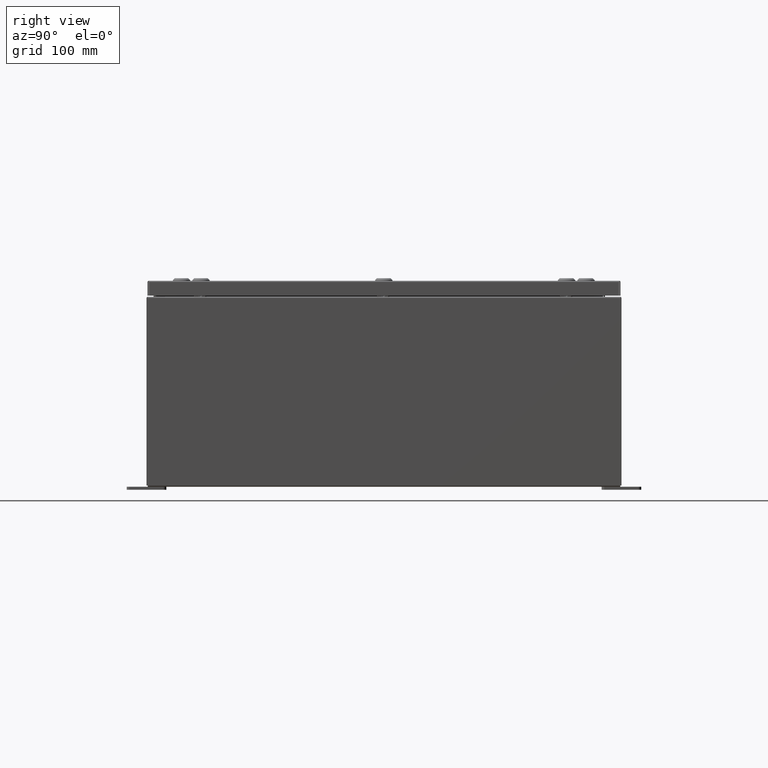
[diagram: clean part render]
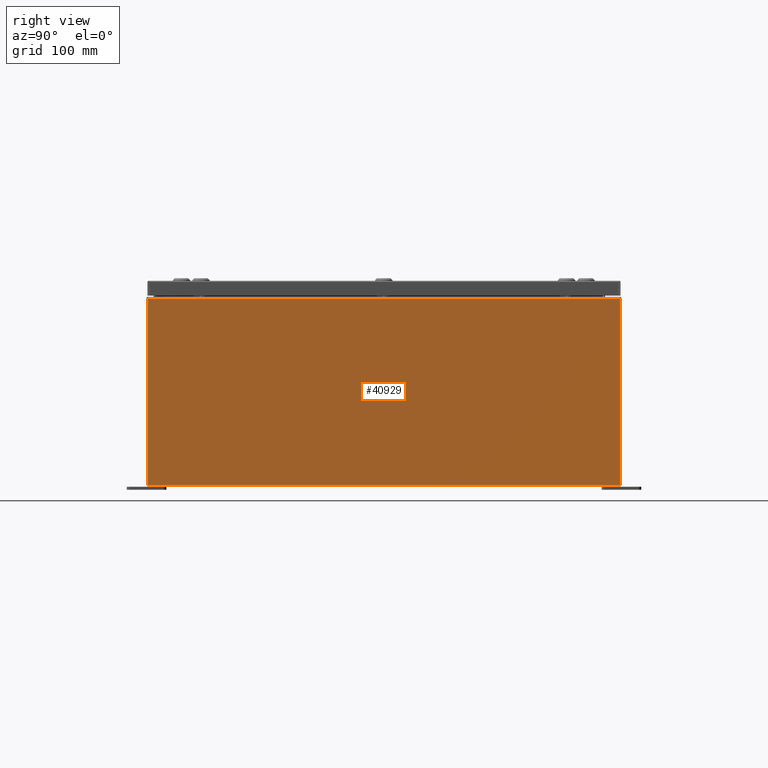
[diagram: same view with one face highlighted and labeled with its STEP entity id]
A machine part, right view. The second image highlights one B-rep face of the part: STEP entity #40929.
In plain terms, the highlighted planar face has unit normal (-1, 0, 0).
Its self-contained STEP definition (entity closure, byte-faithful):
#5124 = DIRECTION ( 'NONE',  ( -1.000000000000000000, 0.0000000000000000000, 3.482016343714355100E-015 ) ) ;
#11715 = VERTEX_POINT ( 'NONE', #41403 ) ;
#13302 = DIRECTION ( 'NONE',  ( -3.482016343714355500E-015, -1.832640180902292400E-016, -1.000000000000000000 ) ) ;
#13529 = DIRECTION ( 'NONE',  ( -0.0000000000000000000, -1.000000000000000000, -0.0000000000000000000 ) ) ;
#18818 = CARTESIAN_POINT ( 'NONE',  ( 15.00000000000000000, 14.92530000000000000, -4.975578836252481100E-014 ) ) ;
#20910 = EDGE_CURVE ( 'NONE', #11715, #60754, #58731, .T. ) ;
#23398 = CARTESIAN_POINT ( 'NONE',  ( 15.00000000000000000, 14.92529999999999800, 0.01299999999999984700 ) ) ;
#28663 = CARTESIAN_POINT ( 'NONE',  ( 15.00000000000000000, -14.92530000000000000, 0.01299999999999984700 ) ) ;
#30056 = PLANE ( 'NONE',  #53086 ) ;
#31698 = ORIENTED_EDGE ( 'NONE', *, *, #41336, .F. ) ;
#31770 = VECTOR ( 'NONE', #13302, 39.37007874015748100 ) ;
#32029 = ORIENTED_EDGE ( 'NONE', *, *, #20910, .T. ) ;
#32147 = LINE ( 'NONE', #64434, #57536 ) ;
#33672 = LINE ( 'NONE', #18818, #45598 ) ;
#33960 = DIRECTION ( 'NONE',  ( -0.0000000000000000000, -1.000000000000000000, -0.0000000000000000000 ) ) ;
#34025 = ORIENTED_EDGE ( 'NONE', *, *, #65529, .T. ) ;
#35814 = CARTESIAN_POINT ( 'NONE',  ( 15.00000000000004300, 14.92529999999999800, 11.83760000000000000 ) ) ;
#36332 = VERTEX_POINT ( 'NONE', #35814 ) ;
#36886 = LINE ( 'NONE', #64063, #60718 ) ;
#40447 = DIRECTION ( 'NONE',  ( 3.482016343714355100E-015, 0.0000000000000000000, 1.000000000000000000 ) ) ;
#40929 = ADVANCED_FACE ( 'NONE', ( #41667 ), #30056, .F. ) ;
#41336 = EDGE_CURVE ( 'NONE', #52404, #60754, #32147, .T. ) ;
#41403 = CARTESIAN_POINT ( 'NONE',  ( 15.00000000000004300, -14.92529999999999800, 11.83760000000000000 ) ) ;
#41667 = FACE_OUTER_BOUND ( 'NONE', #58384, .T. ) ;
#45598 = VECTOR ( 'NONE', #59339, 39.37007874015748100 ) ;
#50588 = ORIENTED_EDGE ( 'NONE', *, *, #65612, .T. ) ;
#52404 = VERTEX_POINT ( 'NONE', #23398 ) ;
#53086 = AXIS2_PLACEMENT_3D ( 'NONE', #55523, #5124, #40447 ) ;
#55523 = CARTESIAN_POINT ( 'NONE',  ( 15.00000000000000000, 0.0000000000000000000, -5.249105881172690700E-014 ) ) ;
#57536 = VECTOR ( 'NONE', #33960, 39.37007874015748100 ) ;
#58384 = EDGE_LOOP ( 'NONE', ( #34025, #32029, #31698, #50588 ) ) ;
#58731 = LINE ( 'NONE', #64065, #31770 ) ;
#59339 = DIRECTION ( 'NONE',  ( 3.482016343714355500E-015, -1.832640180902292400E-016, 1.000000000000000000 ) ) ;
#60718 = VECTOR ( 'NONE', #13529, 39.37007874015748100 ) ;
#60754 = VERTEX_POINT ( 'NONE', #28663 ) ;
#64063 = CARTESIAN_POINT ( 'NONE',  ( 15.00000000000004300, 14.92529999999999800, 11.83760000000000000 ) ) ;
#64065 = CARTESIAN_POINT ( 'NONE',  ( 15.00000000000000000, -14.92530000000000000, -4.975578836252481100E-014 ) ) ;
#64434 = CARTESIAN_POINT ( 'NONE',  ( 15.00000000000000000, -14.92529999999999800, 0.01299999999999984700 ) ) ;
#65529 = EDGE_CURVE ( 'NONE', #36332, #11715, #36886, .T. ) ;
#65612 = EDGE_CURVE ( 'NONE', #52404, #36332, #33672, .T. ) ;